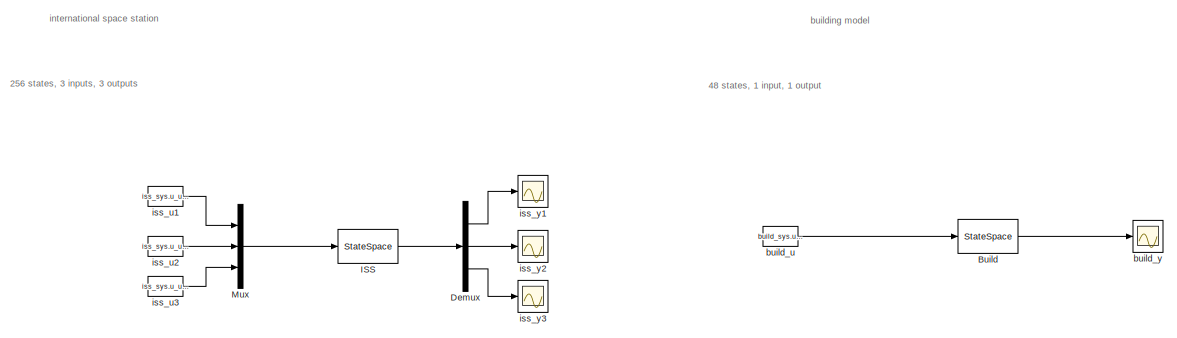
[diagram: root canvas - part 1/7, top left region]
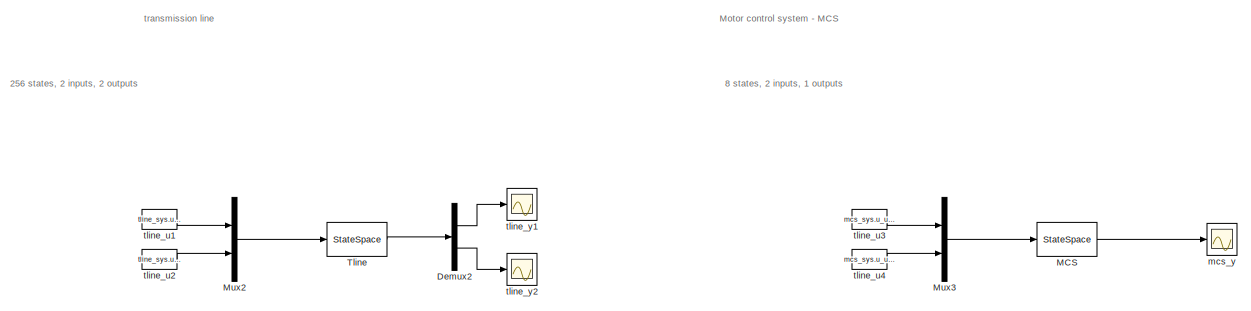
[diagram: root canvas - part 2/7, top right region]
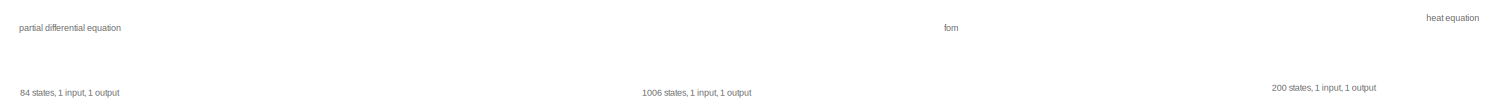
[diagram: root canvas - part 3/7, central region]
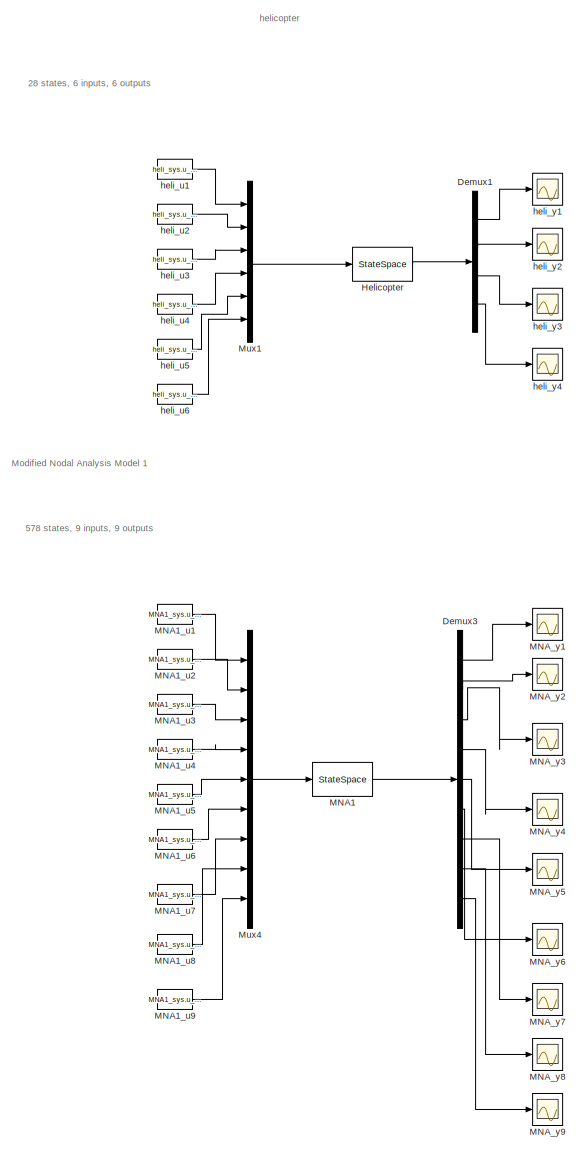
[diagram: root canvas - part 4/7, middle left region]
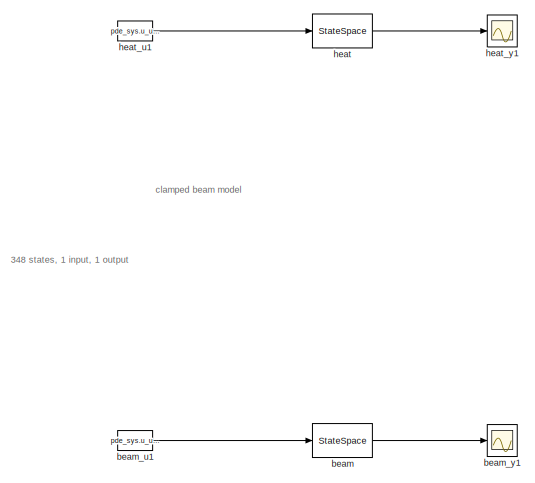
[diagram: root canvas - part 5/7, middle right region]
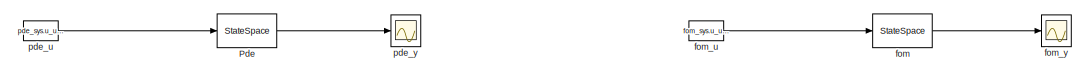
[diagram: root canvas - part 6/7, central region]
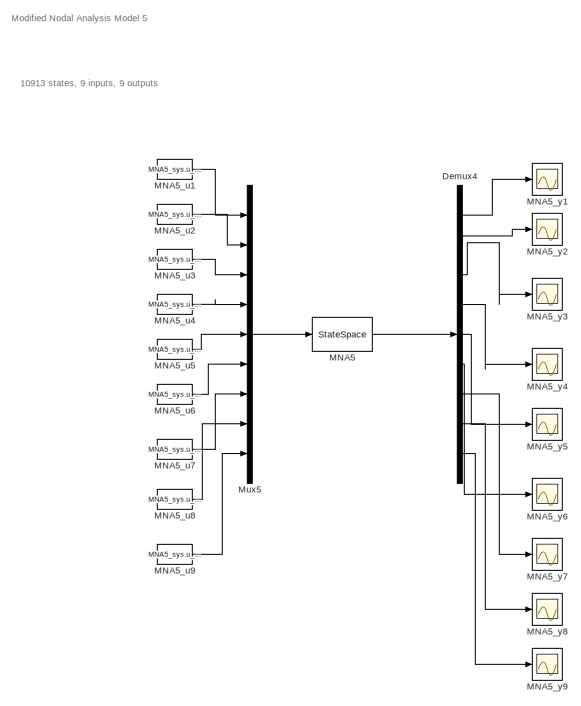
[diagram: root canvas - part 7/7, bottom center region]
MODEL slx_faee2b4218ce
KIND model
BLOCK [StateSpace] Build
  A = build_sys.sys.a
  B = build_sys.sys.b
  C = build_sys.sys.c
  D = build_sys.sys.d
  Ports = [1, 1]
  X0 = build_sys.x0_lb
BLOCK [Demux] Demux
  DisplayOption = bar
  Outputs = 3
  Ports = [1, 3]
BLOCK [Demux] Demux1
  DisplayOption = bar
  Ports = [1, 4]
BLOCK [Demux] Demux2
  DisplayOption = bar
  Outputs = 2
  Ports = [1, 2]
BLOCK [Demux] Demux3
  DisplayOption = bar
  Outputs = 9
  Ports = [1, 9]
BLOCK [Demux] Demux4
  DisplayOption = bar
  Outputs = 9
  Ports = [1, 9]
BLOCK [StateSpace] Helicopter
  A = heli_sys.sys.a
  B = heli_sys.sys.b
  C = heli_sys.sys.c
  D = heli_sys.sys.d
  Ports = [1, 1]
  X0 = heli_sys.x0_lb
BLOCK [StateSpace] ISS
  A = iss_sys.sys.a
  B = iss_sys.sys.b
  C = iss_sys.sys.c
  D = iss_sys.sys.d
  Ports = [1, 1]
  X0 = iss_sys.x0_lb
BLOCK [StateSpace] MCS
  A = mcs_sys.sys.a
  B = mcs_sys.sys.b
  C = mcs_sys.sys.c
  D = mcs_sys.sys.d
  Ports = [1, 1]
  X0 = mcs_sys.x0_lb
BLOCK [StateSpace] MNA1
  A = MNA1_sys.sys.a
  B = MNA1_sys.sys.b
  C = MNA1_sys.sys.c
  D = MNA1_sys.sys.d
  Ports = [1, 1]
  X0 = MNA1_sys.x0_lb
BLOCK [Constant] MNA1_u1
  Value = MNA1_sys.u_ub(1)
BLOCK [Constant] MNA1_u2
  Value = MNA1_sys.u_ub(2)
BLOCK [Constant] MNA1_u3
  Value = MNA1_sys.u_ub(3)
BLOCK [Constant] MNA1_u4
  Value = MNA1_sys.u_ub(4)
BLOCK [Constant] MNA1_u5
  Value = MNA1_sys.u_ub(5)
BLOCK [Constant] MNA1_u6
  Value = MNA1_sys.u_ub(6)
BLOCK [Constant] MNA1_u7
  Value = MNA1_sys.u_ub(7)
BLOCK [Constant] MNA1_u8
  Value = MNA1_sys.u_ub(8)
BLOCK [Constant] MNA1_u9
  Value = MNA1_sys.u_ub(9)
BLOCK [StateSpace] MNA5
  A = MNA5_sys.sys.a
  B = MNA5_sys.sys.b
  C = MNA5_sys.sys.c
  D = MNA5_sys.sys.d
  Ports = [1, 1]
  X0 = MNA5_sys.x0_lb
BLOCK [Constant] MNA5_u1
  Value = MNA5_sys.u_ub(1)
BLOCK [Constant] MNA5_u2
  Value = MNA5_sys.u_ub(2)
BLOCK [Constant] MNA5_u3
  Value = MNA5_sys.u_ub(3)
BLOCK [Constant] MNA5_u4
  Value = MNA5_sys.u_ub(4)
BLOCK [Constant] MNA5_u5
  Value = MNA5_sys.u_ub(5)
BLOCK [Constant] MNA5_u6
  Value = MNA5_sys.u_ub(6)
BLOCK [Constant] MNA5_u7
  Value = MNA5_sys.u_ub(7)
BLOCK [Constant] MNA5_u8
  Value = MNA5_sys.u_ub(8)
BLOCK [Constant] MNA5_u9
  Value = MNA5_sys.u_ub(9)
BLOCK [Scope] MNA5_y1
  Floating = off
  NumInputPorts = 1
  Ports = [1]
  SaveName = ScopeData22
  ShowLegends = off
BLOCK [Scope] MNA5_y2
  Floating = off
  NumInputPorts = 1
  Ports = [1]
  SaveName = ScopeData23
  ShowLegends = off
BLOCK [Scope] MNA5_y3
  Floating = off
  NumInputPorts = 1
  Ports = [1]
  SaveName = ScopeData24
  ShowLegends = off
BLOCK [Scope] MNA5_y4
  Floating = off
  NumInputPorts = 1
  Ports = [1]
  SaveName = ScopeData25
  ShowLegends = off
BLOCK [Scope] MNA5_y5
  Floating = off
  NumInputPorts = 1
  Ports = [1]
  SaveName = ScopeData26
  ShowLegends = off
BLOCK [Scope] MNA5_y6
  Floating = off
  NumInputPorts = 1
  Ports = [1]
  SaveName = ScopeData27
  ShowLegends = off
BLOCK [Scope] MNA5_y7
  Floating = off
  NumInputPorts = 1
  Ports = [1]
  SaveName = ScopeData28
  ShowLegends = off
BLOCK [Scope] MNA5_y8
  Floating = off
  NumInputPorts = 1
  Ports = [1]
  SaveName = ScopeData29
  ShowLegends = off
BLOCK [Scope] MNA5_y9
  Floating = off
  NumInputPorts = 1
  Ports = [1]
  SaveName = ScopeData30
  ShowLegends = off
BLOCK [Scope] MNA_y1
  Floating = off
  NumInputPorts = 1
  Ports = [1]
  SaveName = ScopeData13
  ShowLegends = off
BLOCK [Scope] MNA_y2
  Floating = off
  NumInputPorts = 1
  Ports = [1]
  SaveName = ScopeData14
  ShowLegends = off
BLOCK [Scope] MNA_y3
  Floating = off
  NumInputPorts = 1
  Ports = [1]
  SaveName = ScopeData15
  ShowLegends = off
BLOCK [Scope] MNA_y4
  Floating = off
  NumInputPorts = 1
  Ports = [1]
  SaveName = ScopeData16
  ShowLegends = off
BLOCK [Scope] MNA_y5
  Floating = off
  NumInputPorts = 1
  Ports = [1]
  SaveName = ScopeData17
  ShowLegends = off
BLOCK [Scope] MNA_y6
  Floating = off
  NumInputPorts = 1
  Ports = [1]
  SaveName = ScopeData18
  ShowLegends = off
BLOCK [Scope] MNA_y7
  Floating = off
  NumInputPorts = 1
  Ports = [1]
  SaveName = ScopeData19
  ShowLegends = off
BLOCK [Scope] MNA_y8
  Floating = off
  NumInputPorts = 1
  Ports = [1]
  SaveName = ScopeData20
  ShowLegends = off
BLOCK [Scope] MNA_y9
  Floating = off
  NumInputPorts = 1
  Ports = [1]
  SaveName = ScopeData21
  ShowLegends = off
BLOCK [Mux] Mux
  DisplayOption = bar
  Inputs = 3
  Ports = [3, 1]
BLOCK [Mux] Mux1
  DisplayOption = bar
  Inputs = 6
  Ports = [6, 1]
BLOCK [Mux] Mux2
  DisplayOption = bar
  Inputs = 2
  Ports = [2, 1]
BLOCK [Mux] Mux3
  DisplayOption = bar
  Inputs = 2
  Ports = [2, 1]
BLOCK [Mux] Mux4
  DisplayOption = bar
  Inputs = 9
  Ports = [9, 1]
BLOCK [Mux] Mux5
  DisplayOption = bar
  Inputs = 9
  Ports = [9, 1]
BLOCK [StateSpace] Pde
  A = pde_sys.sys.a
  B = pde_sys.sys.b
  C = pde_sys.sys.c
  D = pde_sys.sys.d
  Ports = [1, 1]
  X0 = pde_sys.x0_lb
BLOCK [StateSpace] Tline
  A = tline_sys.sys.a
  B = tline_sys.sys.b
  C = tline_sys.sys.c
  D = tline_sys.sys.d
  Ports = [1, 1]
  X0 = tline_sys.x0_lb
BLOCK [StateSpace] beam
  A = beam_sys.sys.a
  B = beam_sys.sys.b
  C = beam_sys.sys.c
  D = beam_sys.sys.d
  Ports = [1, 1]
  X0 = beam_sys.x0_lb
BLOCK [Constant] beam_u1
  Value = pde_sys.u_ub(1)
BLOCK [Scope] beam_y1
  Floating = off
  NumInputPorts = 1
  Ports = [1]
  SaveName = ScopeData32
  ShowLegends = off
BLOCK [Constant] build_u
  Value = build_sys.u_ub(1)
BLOCK [Scope] build_y
  Floating = off
  NumInputPorts = 1
  Ports = [1]
  SaveName = ScopeData3
  ShowLegends = off
BLOCK [StateSpace] fom
  A = fom_sys.sys.a
  B = fom_sys.sys.b
  C = fom_sys.sys.c
  D = fom_sys.sys.d
  Ports = [1, 1]
  X0 = fom_sys.x0_lb
BLOCK [Constant] fom_u
  Value = fom_sys.u_ub(1)
BLOCK [Scope] fom_y
  Floating = off
  NumInputPorts = 1
  Ports = [1]
  SaveName = ScopeData7
  ShowLegends = off
BLOCK [StateSpace] heat
  A = heat_sys.sys.a
  B = heat_sys.sys.b
  C = heat_sys.sys.c
  D = heat_sys.sys.d
  Ports = [1, 1]
  X0 = heat_sys.x0_lb
BLOCK [Constant] heat_u1
  Value = pde_sys.u_ub(1)
BLOCK [Scope] heat_y1
  Floating = off
  NumInputPorts = 1
  Ports = [1]
  SaveName = ScopeData31
  ShowLegends = off
BLOCK [Constant] heli_u1
  Value = heli_sys.u_ub(1)
BLOCK [Constant] heli_u2
  Value = heli_sys.u_ub(2)
BLOCK [Constant] heli_u3
  Value = heli_sys.u_ub(3)
BLOCK [Constant] heli_u4
  Value = heli_sys.u_ub(4)
BLOCK [Constant] heli_u5
  Value = heli_sys.u_ub(5)
BLOCK [Constant] heli_u6
  Value = heli_sys.u_ub(6)
BLOCK [Scope] heli_y1
  Floating = off
  NumInputPorts = 1
  Ports = [1]
  SaveName = ScopeData8
  ShowLegends = off
BLOCK [Scope] heli_y2
  Floating = off
  NumInputPorts = 1
  Ports = [1]
  SaveName = ScopeData9
  ShowLegends = off
BLOCK [Scope] heli_y3
  Floating = off
  NumInputPorts = 1
  Ports = [1]
  SaveName = ScopeData10
  ShowLegends = off
BLOCK [Scope] heli_y4
  Floating = off
  NumInputPorts = 1
  Ports = [1]
  SaveName = ScopeData11
  ShowLegends = off
BLOCK [Constant] iss_u1
  Value = iss_sys.u_ub(1)
BLOCK [Constant] iss_u2
  Value = iss_sys.u_ub(2)
BLOCK [Constant] iss_u3
  Value = iss_sys.u_ub(3)
BLOCK [Scope] iss_y1
  Floating = off
  NumInputPorts = 1
  Ports = [1]
  ShowLegends = off
BLOCK [Scope] iss_y2
  Floating = off
  NumInputPorts = 1
  Ports = [1]
  SaveName = ScopeData1
  ShowLegends = off
BLOCK [Scope] iss_y3
  Floating = off
  NumInputPorts = 1
  Ports = [1]
  SaveName = ScopeData2
  ShowLegends = off
BLOCK [Scope] mcs_y
  Floating = off
  NumInputPorts = 1
  Ports = [1]
  SaveName = ScopeData12
  ShowLegends = off
BLOCK [Constant] pde_u
  Value = pde_sys.u_ub(1)
BLOCK [Scope] pde_y
  Floating = off
  NumInputPorts = 1
  Ports = [1]
  SaveName = ScopeData4
  ShowLegends = off
BLOCK [Constant] tline_u1
  Value = tline_sys.u_ub(1)
BLOCK [Constant] tline_u2
  Value = tline_sys.u_ub(2)
BLOCK [Constant] tline_u3
  Value = mcs_sys.u_ub(1)
BLOCK [Constant] tline_u4
  Value = mcs_sys.u_ub(2)
BLOCK [Scope] tline_y1
  Floating = off
  NumInputPorts = 1
  Ports = [1]
  SaveName = ScopeData5
  ShowLegends = off
BLOCK [Scope] tline_y2
  Floating = off
  NumInputPorts = 1
  Ports = [1]
  SaveName = ScopeData6
  ShowLegends = off
ANNOTATION (root): 1006 states, 1 input, 1 output
ANNOTATION (root): 10913 states, 9 inputs, 9 outputs
ANNOTATION (root): 200 states, 1 input, 1 output
ANNOTATION (root): 256 states, 2 inputs, 2 outputs
ANNOTATION (root): 256 states, 3 inputs, 3 outputs
ANNOTATION (root): 28 states, 6 inputs, 6 outputs
ANNOTATION (root): 348 states, 1 input, 1 output
ANNOTATION (root): 48 states, 1 input, 1 output
ANNOTATION (root): 578 states, 9 inputs, 9 outputs
ANNOTATION (root): 8 states, 2 inputs, 1 outputs
ANNOTATION (root): 84 states, 1 input, 1 output
ANNOTATION (root): Modified Nodal Analysis Model 1
ANNOTATION (root): Modified Nodal Analysis Model 5
ANNOTATION (root): Motor control system - MCS
ANNOTATION (root): building model
ANNOTATION (root): clamped beam model
ANNOTATION (root): fom
ANNOTATION (root): heat equation
ANNOTATION (root): helicopter
ANNOTATION (root): international space station
ANNOTATION (root): partial differential equation
ANNOTATION (root): transmission line
LINE Build:1 -> build_y:1
LINE Demux1:1 -> heli_y1:1
LINE Demux1:2 -> heli_y2:1
LINE Demux1:3 -> heli_y3:1
LINE Demux1:4 -> heli_y4:1
LINE Demux2:1 -> tline_y1:1
LINE Demux2:2 -> tline_y2:1
LINE Demux3:1 -> MNA_y1:1
LINE Demux3:2 -> MNA_y2:1
LINE Demux3:3 -> MNA_y3:1
LINE Demux3:4 -> MNA_y4:1
LINE Demux3:5 -> MNA_y5:1
LINE Demux3:6 -> MNA_y6:1
LINE Demux3:7 -> MNA_y7:1
LINE Demux3:8 -> MNA_y8:1
LINE Demux3:9 -> MNA_y9:1
LINE Demux4:1 -> MNA5_y1:1
LINE Demux4:2 -> MNA5_y2:1
LINE Demux4:3 -> MNA5_y3:1
LINE Demux4:4 -> MNA5_y4:1
LINE Demux4:5 -> MNA5_y5:1
LINE Demux4:6 -> MNA5_y6:1
LINE Demux4:7 -> MNA5_y7:1
LINE Demux4:8 -> MNA5_y8:1
LINE Demux4:9 -> MNA5_y9:1
LINE Demux:1 -> iss_y1:1
LINE Demux:2 -> iss_y2:1
LINE Demux:3 -> iss_y3:1
LINE Helicopter:1 -> Demux1:1
LINE ISS:1 -> Demux:1
LINE MCS:1 -> mcs_y:1
LINE MNA1:1 -> Demux3:1
LINE MNA1_u1:1 -> Mux4:1
LINE MNA1_u2:1 -> Mux4:2
LINE MNA1_u3:1 -> Mux4:3
LINE MNA1_u4:1 -> Mux4:4
LINE MNA1_u5:1 -> Mux4:5
LINE MNA1_u6:1 -> Mux4:6
LINE MNA1_u7:1 -> Mux4:7
LINE MNA1_u8:1 -> Mux4:8
LINE MNA1_u9:1 -> Mux4:9
LINE MNA5:1 -> Demux4:1
LINE MNA5_u1:1 -> Mux5:1
LINE MNA5_u2:1 -> Mux5:2
LINE MNA5_u3:1 -> Mux5:3
LINE MNA5_u4:1 -> Mux5:4
LINE MNA5_u5:1 -> Mux5:5
LINE MNA5_u6:1 -> Mux5:6
LINE MNA5_u7:1 -> Mux5:7
LINE MNA5_u8:1 -> Mux5:8
LINE MNA5_u9:1 -> Mux5:9
LINE Mux1:1 -> Helicopter:1
LINE Mux2:1 -> Tline:1
LINE Mux3:1 -> MCS:1
LINE Mux4:1 -> MNA1:1
LINE Mux5:1 -> MNA5:1
LINE Mux:1 -> ISS:1
LINE Pde:1 -> pde_y:1
LINE Tline:1 -> Demux2:1
LINE beam:1 -> beam_y1:1
LINE beam_u1:1 -> beam:1
LINE build_u:1 -> Build:1
LINE fom:1 -> fom_y:1
LINE fom_u:1 -> fom:1
LINE heat:1 -> heat_y1:1
LINE heat_u1:1 -> heat:1
LINE heli_u1:1 -> Mux1:1
LINE heli_u2:1 -> Mux1:2
LINE heli_u3:1 -> Mux1:3
LINE heli_u4:1 -> Mux1:4
LINE heli_u5:1 -> Mux1:5
LINE heli_u6:1 -> Mux1:6
LINE iss_u1:1 -> Mux:1
LINE iss_u2:1 -> Mux:2
LINE iss_u3:1 -> Mux:3
LINE pde_u:1 -> Pde:1
LINE tline_u1:1 -> Mux2:1
LINE tline_u2:1 -> Mux2:2
LINE tline_u3:1 -> Mux3:1
LINE tline_u4:1 -> Mux3:2
